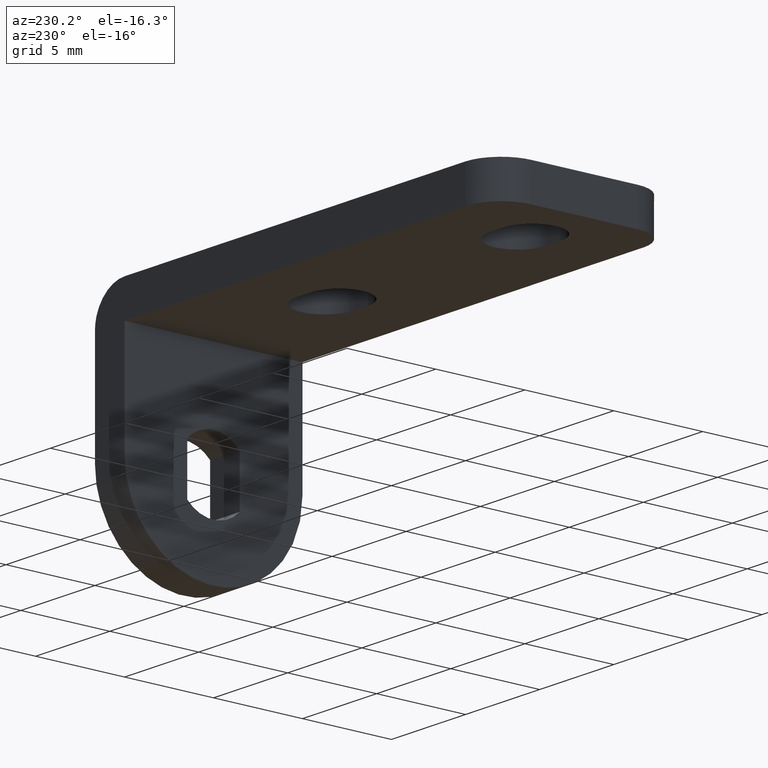
[diagram: clean part render]
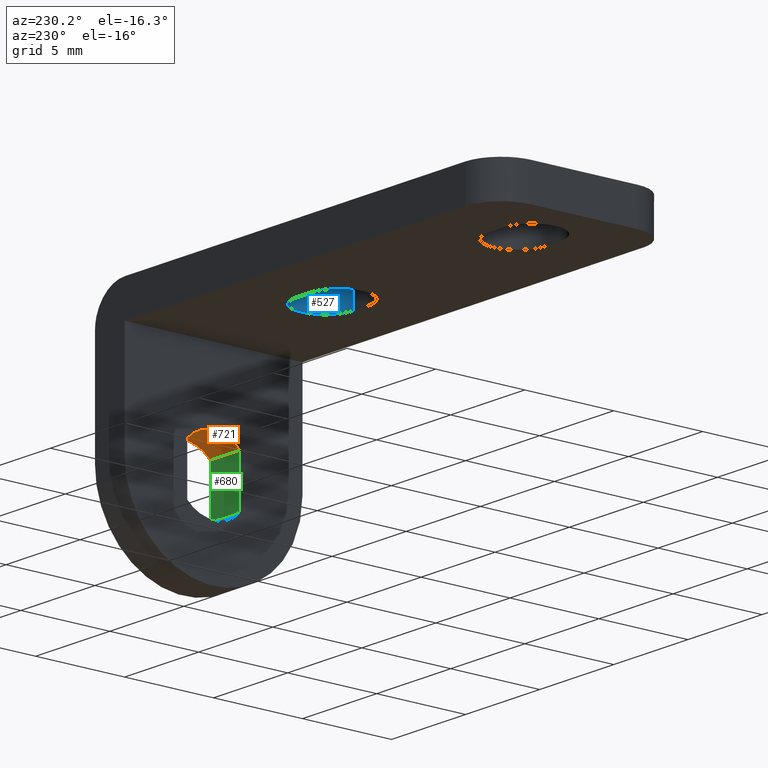
[diagram: same view with three faces highlighted in distinct colors, each labeled with its STEP entity id]
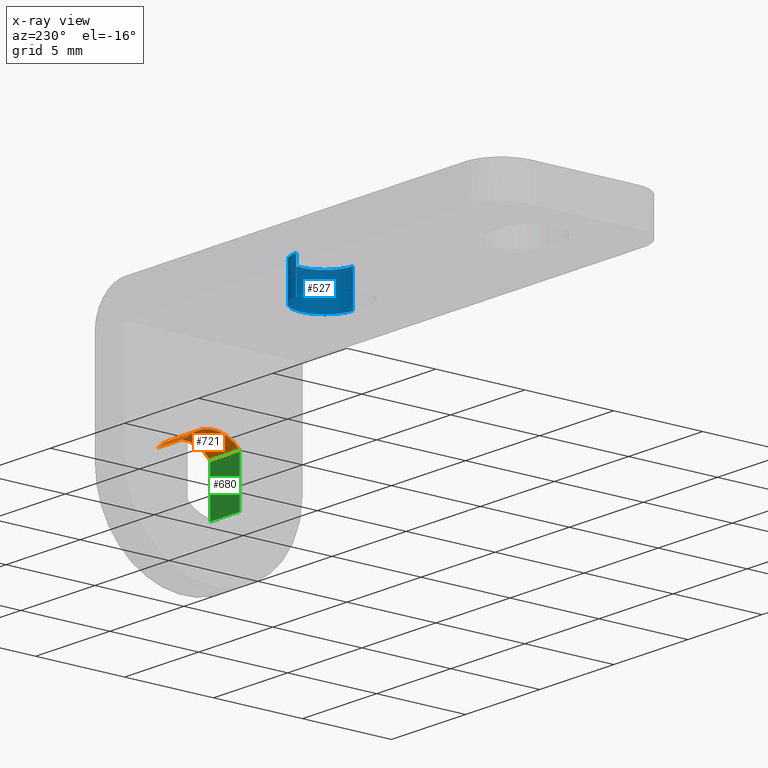
[diagram: x-ray of the same camera — body ghosted, the three highlighted faces saturated]
A machine part, auxiliary view with three faces highlighted in distinct colors.
The next image is the same camera in x-ray (body ghosted, the three faces saturated) — at least one of them is partly hidden behind the body in this view.
Their STEP definitions:

[orange] entity #721 — the highlighted face is a freeform B-spline surface patch.
#83=CARTESIAN_POINT('',(-2.0,1.474999999999910,1.387443692550988));
#84=VERTEX_POINT('',#83);
#90=CARTESIAN_POINT('',(-2.0,-1.475000000000000,1.387443692551104));
#91=VERTEX_POINT('',#90);
#92=CARTESIAN_POINT('',(-2.0,1.474999999999910,1.387443692550988));
#93=CARTESIAN_POINT('',(-1.999999999999996,1.357102539872610,1.512851434965368));
#94=CARTESIAN_POINT('',(-2.000000000000004,1.162768326563903,1.672650779027222));
#95=CARTESIAN_POINT('',(-1.999999999999998,0.853207759669690,1.843199744601586));
#96=CARTESIAN_POINT('',(-2.0,0.555439248956538,1.958621154515853));
#97=CARTESIAN_POINT('',(-2.0,0.181743546619741,2.030988730943316));
#98=CARTESIAN_POINT('',(-2.0,-0.207511261108208,2.026010651327402));
#99=CARTESIAN_POINT('',(-1.999999999999995,-0.529274213817618,1.961570195446855));
#100=CARTESIAN_POINT('',(-2.000000000000032,-0.838332617248001,1.853000774453012));
#101=CARTESIAN_POINT('',(-1.999999999999918,-1.157669848905360,1.679689960321592));
#102=CARTESIAN_POINT('',(-2.000000000000061,-1.374775395764616,1.494023867975816));
#103=CARTESIAN_POINT('',(-2.0,-1.475000000000000,1.387443692551104));
#104=B_SPLINE_CURVE_WITH_KNOTS('',3,(#92,#93,#94,#95,#96,#97,#98,#99,#100,#101,#102,#103),.UNSPECIFIED.,.F.,.U.,(4,1,1,1,1,1,1,1,1,4),(0.000000022158622,0.516359102277678,0.748727145943528,1.058547903106527,1.471639036251773,1.884718851656995,2.220360404171133,2.452727092234046,2.865822358041896,3.304727559538841),.UNSPECIFIED.);
#105=EDGE_CURVE('',#84,#91,#104,.T.);
#659=CARTESIAN_POINT('',(0.0,-1.475000000000080,1.387443692551104));
#660=VERTEX_POINT('',#659);
#661=CARTESIAN_POINT('',(0.0,-1.475000000000080,1.387443692551104));
#662=CARTESIAN_POINT('',(-2.0,-1.475000000000000,1.387443692551104));
#663=QUASI_UNIFORM_CURVE('',1,(#661,#662),.UNSPECIFIED.,.F.,.U.);
#664=EDGE_CURVE('',#660,#91,#663,.T.);
#681=CARTESIAN_POINT('',(0.050000000000000,1.510813596158961,1.348357251495716));
#682=CARTESIAN_POINT('',(-2.051250000000000,1.510813596158961,1.348357251495716));
#683=CARTESIAN_POINT('',(0.050000000000000,-0.040293987609064,3.086349481716946));
#684=CARTESIAN_POINT('',(-2.051250000000000,-0.040293987609064,3.086349481716946));
#685=CARTESIAN_POINT('',(0.050000000000000,-1.545499744562425,1.308455402204192));
#686=CARTESIAN_POINT('',(-2.051250000000000,-1.545499744562425,1.308455402204192));
#694=(BOUNDED_SURFACE()B_SPLINE_SURFACE(1,2,((#681,#683,#685),(#682,#684,#686)),.UNSPECIFIED.,.F.,.F.,.U.)B_SPLINE_SURFACE_WITH_KNOTS((2,2),(3,3),(0.0,2.101250000000000),(0.0,3.691382669813871),.UNSPECIFIED.)GEOMETRIC_REPRESENTATION_ITEM()RATIONAL_B_SPLINE_SURFACE(((1.0,0.656059028990507,1.0),(1.0,0.656059028990507,1.0)))REPRESENTATION_ITEM('')SURFACE());
#695=ORIENTED_EDGE('',*,*,#105,.F.);
#696=CARTESIAN_POINT('',(0.0,1.474999999999910,1.387443692550988));
#697=VERTEX_POINT('',#696);
#698=CARTESIAN_POINT('',(0.0,1.474999999999910,1.387443692550988));
#699=CARTESIAN_POINT('',(-2.0,1.474999999999910,1.387443692550988));
#700=QUASI_UNIFORM_CURVE('',1,(#698,#699),.UNSPECIFIED.,.F.,.U.);
#701=EDGE_CURVE('',#697,#84,#700,.T.);
#702=ORIENTED_EDGE('',*,*,#701,.F.);
#703=CARTESIAN_POINT('',(0.0,1.474999999999910,1.387443692550988));
#704=CARTESIAN_POINT('',(0.0,1.380670494113556,1.487754335689962));
#705=CARTESIAN_POINT('',(0.0,1.217201352177897,1.629348577602691));
#706=CARTESIAN_POINT('',(0.0,0.902101189674611,1.824571535563073));
#707=CARTESIAN_POINT('',(0.0,0.572594252538537,1.957131040315841));
#708=CARTESIAN_POINT('',(0.0,0.198452724673971,2.024606629939703));
#709=CARTESIAN_POINT('',(0.0,-0.138136115437624,2.028900425362896));
#710=CARTESIAN_POINT('',(0.0,-0.420049765506036,1.987262036304930));
#711=CARTESIAN_POINT('',(0.0,-0.726434035424657,1.899006509463014));
#712=CARTESIAN_POINT('',(0.0,-1.087573258639210,1.731872807022510));
#713=CARTESIAN_POINT('',(0.0,-1.345326968082001,1.525406492633100));
#714=CARTESIAN_POINT('',(0.0,-1.475000000000080,1.387443692551104));
#715=B_SPLINE_CURVE_WITH_KNOTS('',3,(#703,#704,#705,#706,#707,#708,#709,#710,#711,#712,#713,#714),.UNSPECIFIED.,.F.,.U.,(4,1,1,1,1,1,1,1,1,4),(0.000000022159004,0.413086376242160,0.645452178341382,1.110186247197694,1.471639036251949,1.781447523393023,2.117090264590202,2.323634236006428,2.736730945053143,3.304727559538897),.UNSPECIFIED.);
#716=EDGE_CURVE('',#697,#660,#715,.T.);
#717=ORIENTED_EDGE('',*,*,#716,.T.);
#718=ORIENTED_EDGE('',*,*,#664,.T.);
#719=EDGE_LOOP('',(#695,#702,#717,#718));
#720=FACE_OUTER_BOUND('',#719,.T.);
#721=ADVANCED_FACE('',(#720),#694,.F.);

[blue] entity #527 — the highlighted face is a freeform B-spline surface patch.
#445=CARTESIAN_POINT('',(-9.513962456797287,1.599939076902674,5.949999999999999));
#446=CARTESIAN_POINT('',(-9.513962456797287,1.599939076902674,8.051250000000000));
#447=CARTESIAN_POINT('',(-7.857177042446469,1.614397624171370,5.949999999999999));
#448=CARTESIAN_POINT('',(-7.857177042446469,1.614397624171370,8.051250000000000));
#449=CARTESIAN_POINT('',(-7.900548280038999,-0.041883117292597,5.949999999999999));
#450=CARTESIAN_POINT('',(-7.900548280038999,-0.041883117292597,8.051250000000000));
#451=CARTESIAN_POINT('',(-7.943919517631531,-1.698163858756564,5.949999999999999));
#452=CARTESIAN_POINT('',(-7.943919517631531,-1.698163858756564,8.051250000000000));
#453=CARTESIAN_POINT('',(-9.597677663255663,-1.597015677474986,5.949999999999999));
#454=CARTESIAN_POINT('',(-9.597677663255663,-1.597015677474986,8.051250000000000));
#462=(BOUNDED_SURFACE()B_SPLINE_SURFACE(1,2,((#445,#447,#449,#451,#453),(#446,#448,#450,#452,#454)),.UNSPECIFIED.,.F.,.F.,.U.)B_SPLINE_SURFACE_WITH_KNOTS((2,2),(3,2,3),(0.0,2.101250000000000),(0.0,2.716638823741472,5.433277647482944),.UNSPECIFIED.)GEOMETRIC_REPRESENTATION_ITEM()RATIONAL_B_SPLINE_SURFACE(((1.0,0.694658370458997,1.0,0.694658370458997,1.0),(1.0,0.694658370458997,1.0,0.694658370458997,1.0)))REPRESENTATION_ITEM('')SURFACE());
#463=CARTESIAN_POINT('',(-9.499999999999890,1.600000000000000,8.0));
#464=VERTEX_POINT('',#463);
#465=CARTESIAN_POINT('',(-9.499999999999890,-1.600000000000000,8.0));
#466=VERTEX_POINT('',#465);
#467=CARTESIAN_POINT('',(-9.499999999999890,1.600000000000000,8.0));
#468=CARTESIAN_POINT('',(-9.362553139464531,1.600040555348078,8.000000000000004));
#469=CARTESIAN_POINT('',(-9.107323745933371,1.566900606042539,8.000000000000002));
#470=CARTESIAN_POINT('',(-8.757120010175092,1.431830066229358,8.000000000000002));
#471=CARTESIAN_POINT('',(-8.472408887362889,1.241582360639320,8.000000000000005));
#472=CARTESIAN_POINT('',(-8.256547535726693,1.020338946922571,7.999999999999994));
#473=CARTESIAN_POINT('',(-8.109305570241512,0.802859260574757,8.000000000000018));
#474=CARTESIAN_POINT('',(-8.001348239892726,0.578169849843138,7.999999999999962));
#475=CARTESIAN_POINT('',(-7.911674489653333,0.282720032215987,7.999999999999990));
#476=CARTESIAN_POINT('',(-7.885930706051161,-0.066374532112250,8.000000000000114));
#477=CARTESIAN_POINT('',(-7.948893299075079,-0.442828144835101,7.999999999999905));
#478=CARTESIAN_POINT('',(-8.068140183310350,-0.735784556106195,7.999999999999971));
#479=CARTESIAN_POINT('',(-8.232783958311748,-0.988829578226007,8.000000000000219));
#480=CARTESIAN_POINT('',(-8.392759360736383,-1.163176950000834,7.999999999999954));
#481=CARTESIAN_POINT('',(-8.601552810139184,-1.332400200328047,7.999999999999946));
#482=CARTESIAN_POINT('',(-8.812660275053457,-1.453709248125592,8.000000000000147));
#483=CARTESIAN_POINT('',(-9.126968902918438,-1.568345111540177,7.999999999999813));
#484=CARTESIAN_POINT('',(-9.349456975026063,-1.600067584057842,8.000000000000364));
#485=CARTESIAN_POINT('',(-9.499999999999890,-1.600000000000000,8.0));
#486=B_SPLINE_CURVE_WITH_KNOTS('',3,(#467,#468,#469,#470,#471,#472,#473,#474,#475,#476,#477,#478,#479,#480,#481,#482,#483,#484,#485),.UNSPECIFIED.,.F.,.U.,(4,1,1,1,1,1,1,1,1,1,1,1,1,1,1,1,4),(0.000000073199182,0.412329353860359,0.765765101639642,1.119197522816487,1.433363276238261,1.688620100601297,1.904605656824725,2.179509744953848,2.611464373825232,2.945256645686798,3.318319414796249,3.553948966024522,3.848477044981262,4.025193835522240,4.358988920833328,4.574976799288792,5.026579785226460),.UNSPECIFIED.);
#487=EDGE_CURVE('',#464,#466,#486,.T.);
#488=ORIENTED_EDGE('',*,*,#487,.F.);
#489=CARTESIAN_POINT('',(-9.499999999999890,1.600000000000000,6.0));
#490=VERTEX_POINT('',#489);
#491=CARTESIAN_POINT('',(-9.499999999999890,1.600000000000000,6.0));
#492=CARTESIAN_POINT('',(-9.499999999999890,1.600000000000000,8.0));
#493=QUASI_UNIFORM_CURVE('',1,(#491,#492),.UNSPECIFIED.,.F.,.U.);
#494=EDGE_CURVE('',#490,#464,#493,.T.);
#495=ORIENTED_EDGE('',*,*,#494,.F.);
#496=CARTESIAN_POINT('',(-9.499999999999890,-1.600000000000000,6.0));
#497=VERTEX_POINT('',#496);
#498=CARTESIAN_POINT('',(-9.499999999999890,1.600000000000000,6.0));
#499=CARTESIAN_POINT('',(-9.362553457982571,1.600040146304689,6.000000000000004));
#500=CARTESIAN_POINT('',(-9.107321922484809,1.566902948141009,6.000000000000001));
#501=CARTESIAN_POINT('',(-8.787848051925600,1.443667249403948,6.000000000000005));
#502=CARTESIAN_POINT('',(-8.498259368186940,1.262785678140656,6.0));
#503=CARTESIAN_POINT('',(-8.274935498471244,1.047542930791526,6.000000000000001));
#504=CARTESIAN_POINT('',(-8.109308034526308,0.802856459875674,6.000000000000014));
#505=CARTESIAN_POINT('',(-8.001347717781153,0.578169806964287,5.999999999999971));
#506=CARTESIAN_POINT('',(-7.911677379501541,0.282720819477145,5.999999999999997));
#507=CARTESIAN_POINT('',(-7.885921293793930,-0.066377214028975,6.000000000000083));
#508=CARTESIAN_POINT('',(-7.940230019498836,-0.390897658673035,5.999999999999957));
#509=CARTESIAN_POINT('',(-8.033627580171991,-0.657061412613784,6.000000000000028));
#510=CARTESIAN_POINT('',(-8.168372329653025,-0.905504945167637,6.000000000000053));
#511=CARTESIAN_POINT('',(-8.345023444480196,-1.118073507241455,5.999999999999994));
#512=CARTESIAN_POINT('',(-8.553576016431091,-1.297954521026727,6.000000000000113));
#513=CARTESIAN_POINT('',(-8.809987427216294,-1.458187720908384,5.999999999999736));
#514=CARTESIAN_POINT('',(-9.140030387174406,-1.573975230474453,6.000000000000571));
#515=CARTESIAN_POINT('',(-9.388740798711948,-1.600011609629813,5.999999999999240));
#516=CARTESIAN_POINT('',(-9.499999999999890,-1.600000000000000,6.0));
#517=B_SPLINE_CURVE_WITH_KNOTS('',3,(#498,#499,#500,#501,#502,#503,#504,#505,#506,#507,#508,#509,#510,#511,#512,#513,#514,#515,#516),.UNSPECIFIED.,.F.,.U.,(4,1,1,1,1,1,1,1,1,1,1,1,1,1,1,1,4),(0.000000073199182,0.412329353860359,0.765765101639642,1.021023842267305,1.433363276238261,1.688620100601297,1.904605656824725,2.179509744953848,2.611464373825232,2.945256645686798,3.161242608682979,3.455767736766684,3.789570659900815,3.985925293039131,4.280450646928032,4.692798997233879,5.026579785226460),.UNSPECIFIED.);
#518=EDGE_CURVE('',#490,#497,#517,.T.);
#519=ORIENTED_EDGE('',*,*,#518,.T.);
#520=CARTESIAN_POINT('',(-9.499999999999890,-1.600000000000000,6.0));
#521=CARTESIAN_POINT('',(-9.499999999999890,-1.600000000000000,8.0));
#522=QUASI_UNIFORM_CURVE('',1,(#520,#521),.UNSPECIFIED.,.F.,.U.);
#523=EDGE_CURVE('',#497,#466,#522,.T.);
#524=ORIENTED_EDGE('',*,*,#523,.T.);
#525=EDGE_LOOP('',(#488,#495,#519,#524));
#526=FACE_OUTER_BOUND('',#525,.T.);
#527=ADVANCED_FACE('',(#526),#462,.F.);

[green] entity #680 — the highlighted face is a freeform B-spline surface patch.
#63=CARTESIAN_POINT('',(-2.0,-1.475000000000080,-1.387443692551102));
#64=VERTEX_POINT('',#63);
#90=CARTESIAN_POINT('',(-2.0,-1.475000000000000,1.387443692551104));
#91=VERTEX_POINT('',#90);
#107=CARTESIAN_POINT('',(-2.0,-1.475000000000000,1.387443692551104));
#108=CARTESIAN_POINT('',(-2.0,-1.475000000000080,-1.387443692551102));
#109=QUASI_UNIFORM_CURVE('',1,(#107,#108),.UNSPECIFIED.,.F.,.U.);
#110=EDGE_CURVE('',#91,#64,#109,.T.);
#653=CARTESIAN_POINT('',(-2.099899996123612,-1.475000000000080,-1.526049312058687));
#654=CARTESIAN_POINT('',(-2.099899996123612,-1.475000000000080,1.526049386486969));
#655=CARTESIAN_POINT('',(0.099900049767792,-1.475000000000080,-1.526049312058687));
#656=CARTESIAN_POINT('',(0.099900049767792,-1.475000000000080,1.526049386486969));
#657=B_SPLINE_SURFACE_WITH_KNOTS('',1,1,((#653,#655),(#654,#656)),.UNSPECIFIED.,.F.,.F.,.U.,(2,2),(2,2),(0.0,3.052098698545656),(0.0,2.199800045891404),.UNSPECIFIED.);
#658=ORIENTED_EDGE('',*,*,#110,.F.);
#659=CARTESIAN_POINT('',(0.0,-1.475000000000080,1.387443692551104));
#660=VERTEX_POINT('',#659);
#661=CARTESIAN_POINT('',(0.0,-1.475000000000080,1.387443692551104));
#662=CARTESIAN_POINT('',(-2.0,-1.475000000000000,1.387443692551104));
#663=QUASI_UNIFORM_CURVE('',1,(#661,#662),.UNSPECIFIED.,.F.,.U.);
#664=EDGE_CURVE('',#660,#91,#663,.T.);
#665=ORIENTED_EDGE('',*,*,#664,.F.);
#666=CARTESIAN_POINT('',(0.0,-1.475000000000080,-1.387443692551102));
#667=VERTEX_POINT('',#666);
#668=CARTESIAN_POINT('',(0.0,-1.475000000000080,1.387443692551104));
#669=CARTESIAN_POINT('',(0.0,-1.475000000000080,-1.387443692551102));
#670=QUASI_UNIFORM_CURVE('',1,(#668,#669),.UNSPECIFIED.,.F.,.U.);
#671=EDGE_CURVE('',#660,#667,#670,.T.);
#672=ORIENTED_EDGE('',*,*,#671,.T.);
#673=CARTESIAN_POINT('',(0.0,-1.475000000000080,-1.387443692551102));
#674=CARTESIAN_POINT('',(-2.0,-1.475000000000080,-1.387443692551102));
#675=QUASI_UNIFORM_CURVE('',1,(#673,#674),.UNSPECIFIED.,.F.,.U.);
#676=EDGE_CURVE('',#667,#64,#675,.T.);
#677=ORIENTED_EDGE('',*,*,#676,.T.);
#678=EDGE_LOOP('',(#658,#665,#672,#677));
#679=FACE_OUTER_BOUND('',#678,.T.);
#680=ADVANCED_FACE('',(#679),#657,.T.);